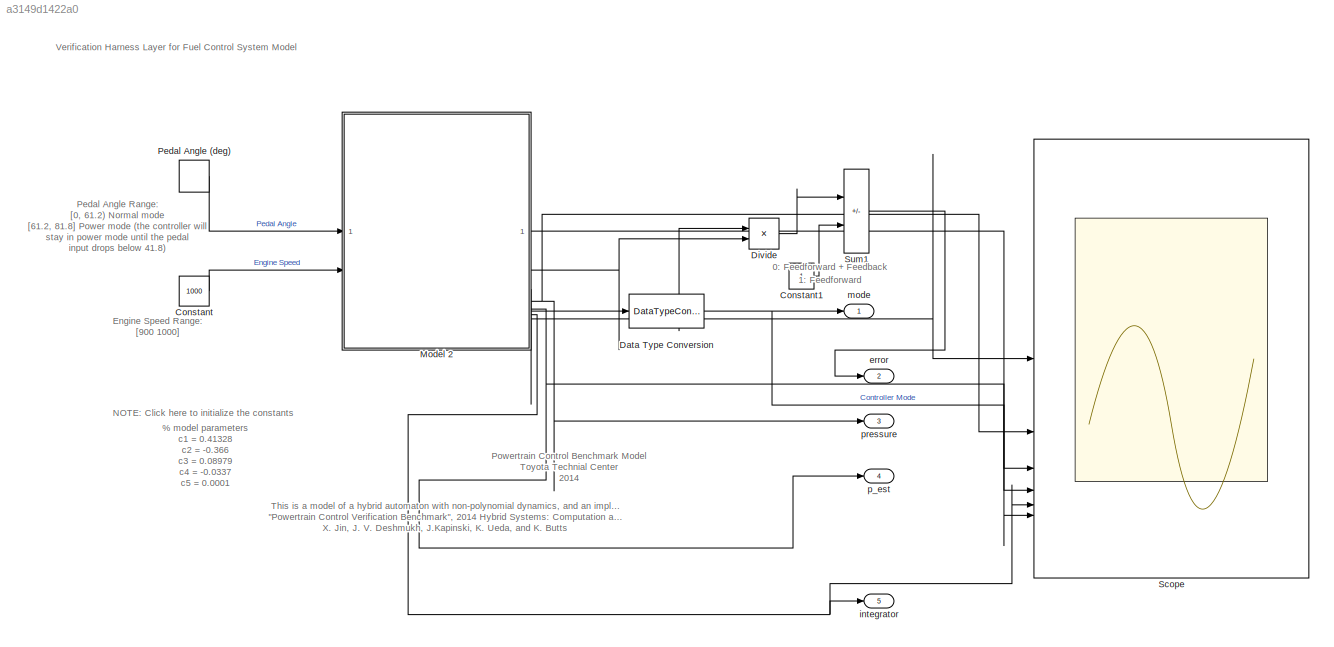
MODEL slx_a3149d1422a0
KIND model
CONFIG AbsTol = auto
CONFIG EnableMultiTasking = on
CONFIG FixedStep = auto
CONFIG MaxStep = auto
CONFIG MinStep = auto
CONFIG RelTol = 1e-3
CONFIG SampleTimeConstraint = Unconstrained
CONFIG SolverName = ode15s
CONFIG StartTime = 0.0
CONFIG StopTime = simTime
BLOCK [Constant] Constant
  Value = 1000
BLOCK [Constant] Constant1
BLOCK [DataTypeConversion] Data Type Conversion
  RndMeth = Floor
  SaturateOnIntegerOverflow = off
BLOCK [Product] Divide
  Inputs = */
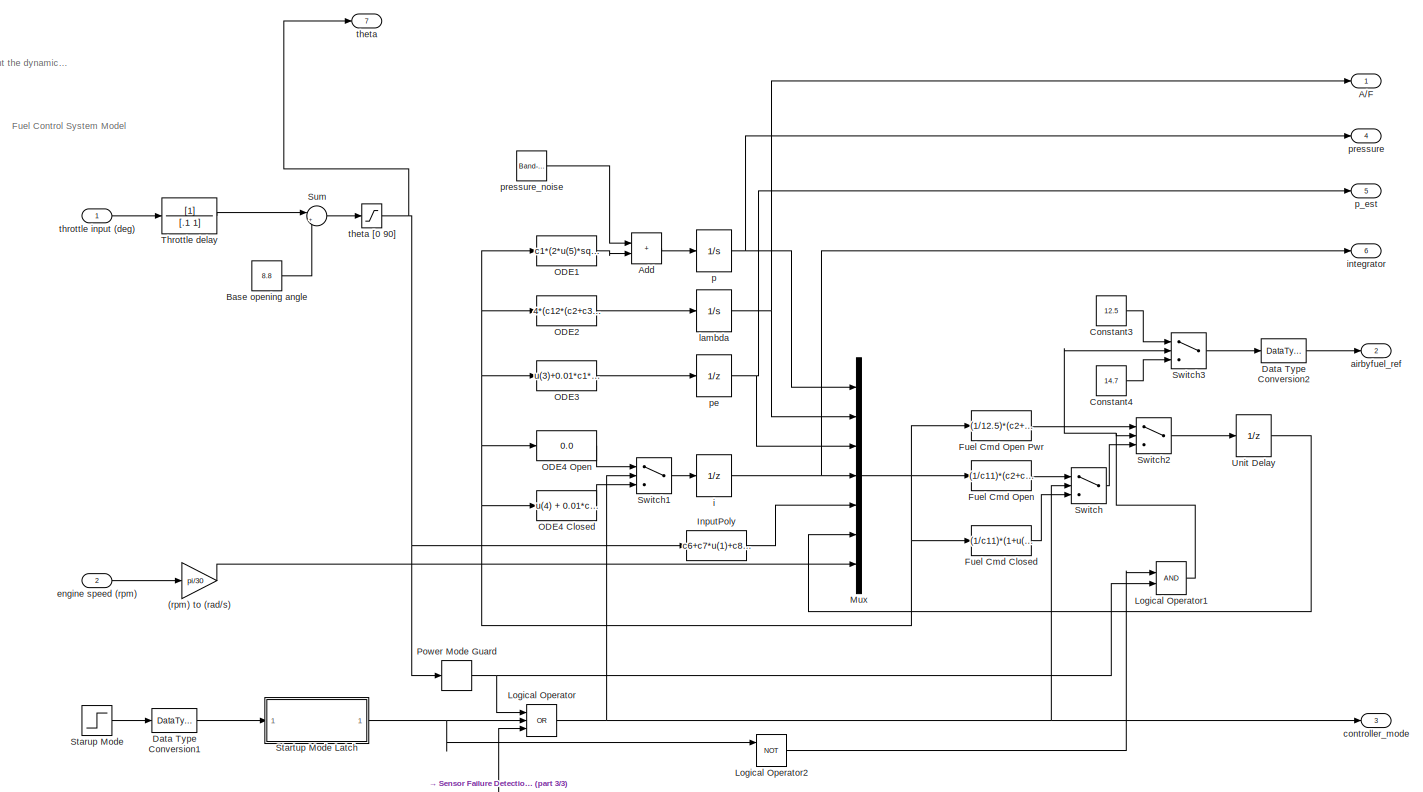
[diagram: Model 2 - part 1/3, most of the canvas]
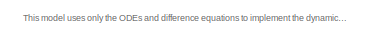
[diagram: Model 2 - part 2/3, top left region]
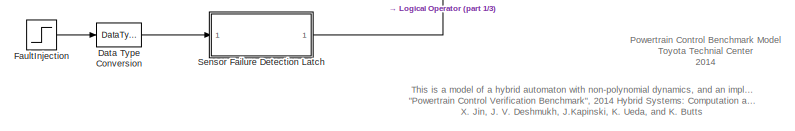
[diagram: Model 2 - part 3/3, bottom center region]
BLOCK [SubSystem] Model 2
  Priority = 1
  TreatAsAtomicUnit = on
BLOCK [Gain] Model 2/(rpm) to (rad//s)
  Gain = pi/30
BLOCK [Outport] Model 2/A//F
BLOCK [Sum] Model 2/Add
  IconShape = rectangular
BLOCK [Constant] Model 2/Base opening angle
  Value = 8.8
BLOCK [Constant] Model 2/Constant3
  Value = 12.5
BLOCK [Constant] Model 2/Constant4
  Value = 14.7
BLOCK [DataTypeConversion] Model 2/Data Type Conversion
  OutDataTypeStr = boolean
  RndMeth = Floor
  SaturateOnIntegerOverflow = off
BLOCK [DataTypeConversion] Model 2/Data Type Conversion1
  OutDataTypeStr = boolean
  RndMeth = Floor
  SaturateOnIntegerOverflow = off
BLOCK [DataTypeConversion] Model 2/Data Type Conversion2
  OutDataTypeStr = double
  RndMeth = Floor
  SaturateOnIntegerOverflow = off
BLOCK [Step] Model 2/FaultInjection
  AttributesFormatString = 1: Failure\n0: Normal
  SampleTime = 0
  Time = fault_time
BLOCK [Fcn] Model 2/Fuel Cmd Closed
  Expr = (1/c11)*(1+u(4)+c13*(c24*u(2)-c11))*(c2+c3*u(7)*u(3)+c4*u(7)*u(3)^2+c5*u(3)*u(7)^2)
BLOCK [Fcn] Model 2/Fuel Cmd Open
  Expr = (1/c11)*(c2+c3*u(7)*u(3)+c4*u(7)*u(3)^2+c5*u(3)*u(7)^2)
BLOCK [Fcn] Model 2/Fuel Cmd Open Pwr
  Expr = (1/12.5)*(c2+c3*u(7)*u(3)+c4*u(7)*u(3)^2+c5*u(3)*u(7)^2)
BLOCK [Fcn] Model 2/InputPoly
  Expr = c6+c7*u(1)+c8*u(1)^2+c9*u(1)^3
BLOCK [Logic] Model 2/Logical Operator
  AllPortsSameDT = off
  Inputs = 3
  Operator = OR
  OutDataTypeStr = boolean
BLOCK [Logic] Model 2/Logical Operator1
  AllPortsSameDT = off
  OutDataTypeStr = boolean
BLOCK [Logic] Model 2/Logical Operator2
  AllPortsSameDT = off
  Inputs = 3
  Operator = NOT
  OutDataTypeStr = boolean
BLOCK [Mux] Model 2/Mux
  DisplayOption = bar
  Inputs = 7
BLOCK [Fcn] Model 2/ODE1
  Expr = c1*(2*u(5)*sqrt((u(1)/c10)-(u(1)/c10)^2) - c12*(c2+c3*u(7)*u(1)+c4*u(7)*u(1)^2+c5*u(1)*u(7)^2))
BLOCK [Fcn] Model 2/ODE2
  Expr = 4*(c12*(c2+c3*u(7)*u(1)+c4*u(7)*u(1)^2+c5*u(1)*u(7)^2)/(c25*u(6))-u(2))
BLOCK [Fcn] Model 2/ODE3
  Expr = u(3)+0.01*c1*(2*c23*u(5)*sqrt((u(1)/c10)-(u(1)/c10)^2) - (c2+c3*u(7)*u(3)+c4*u(7)*u(3)^2+c5*u(3)*u(7)^2))
BLOCK [Fcn] Model 2/ODE4 Closed
  Expr = u(4) + 0.01*c14*(c24*u(2)-c11)
BLOCK [Fcn] Model 2/ODE4 Open
  Expr = 0.0
BLOCK [Relay] Model 2/Power Mode Guard
  OffSwitchValue = 50
  OnSwitchValue = 70
  SampleTime = 0.01
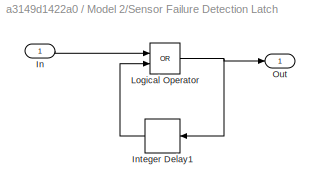
BLOCK [SubSystem] Model 2/Sensor Failure Detection Latch
  TreatAsAtomicUnit = on
BLOCK [Inport] Model 2/Sensor Failure Detection Latch/In
BLOCK [Delay] Model 2/Sensor Failure Detection Latch/Integer Delay1
  DelayLength = 1
  InputPortMap = u0
  SampleTime = 0.01
  UserDataPersistent = on
BLOCK [Logic] Model 2/Sensor Failure Detection Latch/Logical Operator
  AllPortsSameDT = off
  Operator = OR
BLOCK [Outport] Model 2/Sensor Failure Detection Latch/Out
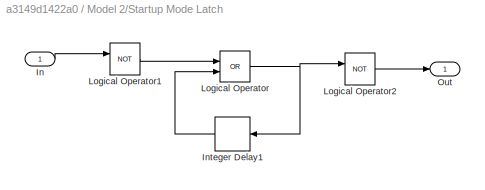
BLOCK [SubSystem] Model 2/Startup Mode Latch
  TreatAsAtomicUnit = on
BLOCK [Inport] Model 2/Startup Mode Latch/In
BLOCK [Delay] Model 2/Startup Mode Latch/Integer Delay1
  DelayLength = 1
  InputPortMap = u0
  SampleTime = 0.01
  UserDataPersistent = on
BLOCK [Logic] Model 2/Startup Mode Latch/Logical Operator
  AllPortsSameDT = off
  Operator = OR
BLOCK [Logic] Model 2/Startup Mode Latch/Logical Operator1
  AllPortsSameDT = off
  Operator = NOT
BLOCK [Logic] Model 2/Startup Mode Latch/Logical Operator2
  AllPortsSameDT = off
  Operator = NOT
BLOCK [Outport] Model 2/Startup Mode Latch/Out
BLOCK [Step] Model 2/Starup Mode
  After = 0
  Before = 1
  SampleTime = 0
  Time = 10
BLOCK [Sum] Model 2/Sum
  Inputs = |++
BLOCK [Switch] Model 2/Switch
  Criteria = u2 ~= 0
  InputSameDT = off
  SaturateOnIntegerOverflow = off
BLOCK [Switch] Model 2/Switch1
  Criteria = u2 ~= 0
  InputSameDT = off
  SaturateOnIntegerOverflow = off
BLOCK [Switch] Model 2/Switch2
  Criteria = u2 ~= 0
  InputSameDT = off
  SaturateOnIntegerOverflow = off
BLOCK [Switch] Model 2/Switch3
  Criteria = u2 ~= 0
  InputSameDT = off
  SaturateOnIntegerOverflow = off
BLOCK [TransferFcn] Model 2/Throttle  delay
  Denominator = [.1 1]
BLOCK [UnitDelay] Model 2/Unit Delay
  HasFrameUpgradeWarning = on
  InitialCondition = 0.6537
  SampleTime = 0.01
BLOCK [Outport] Model 2/airbyfuel_ref
  Port = 2
BLOCK [Outport] Model 2/controller_mode
  Port = 3
BLOCK [Inport] Model 2/engine speed (rpm)
  AttributesFormatString = %<Description>
  Description = [900,1100]
  Port = 2
BLOCK [UnitDelay] Model 2/i
  HasFrameUpgradeWarning = on
  InitialCondition = i_init
  SampleTime = 0.01
  UserDataPersistent = on
BLOCK [Outport] Model 2/integrator
  Port = 6
BLOCK [Integrator] Model 2/lambda
  InitialCondition = 14.7
BLOCK [Integrator] Model 2/p
  InitialCondition = p_init
BLOCK [Outport] Model 2/p_est
  Port = 5
BLOCK [UnitDelay] Model 2/pe
  HasFrameUpgradeWarning = on
  InitialCondition = p_est_init
  SampleTime = 0.01
  UserDataPersistent = on
BLOCK [Outport] Model 2/pressure
  Port = 4
BLOCK [Reference] Model 2/pressure_noise  REF=simulink/Sources/Band-Limited
White Noise
  SourceBlock = simulink/Sources/Band-Limited\nWhite Noise
  SourceType = Band-Limited White Noise.
BLOCK [Outport] Model 2/theta
  Port = 7
BLOCK [Saturate] Model 2/theta [0 90]
  LowerLimit = 0
  NameLocation = top
  UpperLimit = 90
BLOCK [Inport] Model 2/throttle input (deg)
  AttributesFormatString = %<Description>
  Description = [0, 81.2]
BLOCK [DiscretePulseGenerator] Pedal Angle (deg)
  Amplitude = 50
  Period = 20
  PhaseDelay = 3
  PulseType = Time based
  PulseWidth = 50
BLOCK [Scope] Scope
  Floating = off
  NumInputPorts = 6
  ScopeSpecificationString = Simulink.scopes.TimeScopeBlockCfg('CurrentConfiguration', extmgr.ConfigurationSet(extmgr.Configuration('Core','General UI',true),extmgr.Configuration('Core','Source UI',true),extmgr.Configuration('Sources','WiredSimulink',true,'DataLogging',true,'DataLoggingSaveFormat','StructureWithTime'),extmgr.Configuration('Visuals','Time Domain',true,'SerializedDisplays',{struct('MinYLimReal','2.55','MaxYLimR...<+5434ch>
BLOCK [Sum] Sum1
  IconShape = rectangular
  InputSameDT = on
  Inputs = +-
  OutDataTypeStr = Inherit: Inherit via back propagation
  RndMeth = Simplest
BLOCK [Outport] error
  Port = 2
BLOCK [Outport] integrator
  Port = 5
BLOCK [Outport] mode
BLOCK [Outport] p_est
  Port = 4
BLOCK [Outport] pressure
  Port = 3
ANNOTATION (root): % model parameters c1 = 0.41328 c2 = -0.366 c3 = 0.08979 c4 = -0.0337 c5 = 0.0001 c6 = 2.821 c7 = -0.05231 c8 = 0.10299 c9 = -0.00063 c10 = 1.0 c11 = 14.7 c12 = 0.9 c13 = 0.04 c14 = 0.14 % sensors and actuator error factor c23 = 1.0 c24 = 1.0 c25 = 1.0 % simulation time simTime = 50 % engine speed en_speed = 1000 % time to start measurement for verification measureTime = 1 % time to introduce sens...<+60ch>
ANNOTATION (root): 1: Feedforward 0: Feedforward + Feedback
ANNOTATION (root): Engine Speed Range: [900 1000]
ANNOTATION (root): NOTE: Click here to initialize the constants
ANNOTATION (root): Pedal Angle Range: [0, 61.2) Normal mode [61.2, 81.8] Power mode (the controller will stay in power mode until the pedal input drops below 41.8)
ANNOTATION (root): Powertrain Control Benchmark Model Toyota Technial Center 2014
ANNOTATION (root): This is a model of a hybrid automaton with non-polynomial dynamics, and an implementation of the 2nd model that appears in "Powertrain Control Verification Benchmark", 2014 Hybrid Systems: Computation and Control, X. Jin, J. V. Deshmukh, J.Kapinski, K. Ueda, and K. Butts
ANNOTATION (root): Verification Harness Layer for Fuel Control System Model
ANNOTATION Model 2: Fuel Control System Model
ANNOTATION Model 2: Powertrain Control Benchmark Model Toyota Technial Center 2014
ANNOTATION Model 2: This is a model of a hybrid automaton with non-polynomial dynamics, and an implementation of the 2nd model that appears in "Powertrain Control Verification Benchmark", 2014 Hybrid Systems: Computation and Control, X. Jin, J. V. Deshmukh, J.Kapinski, K. Ueda, and K. Butts
ANNOTATION Model 2: This model uses only the ODEs and difference equations to implement the dynamics.
LINE Constant1:1 -> Sum1:2
LINE Constant:1 -> Model 2:2
NET Data Type Conversion:1 -> Scope:6, mode:1
LINE Divide:1 -> Sum1:1
LINE Model 2/(rpm) to (rad//s):1 -> Model 2/Mux:7
LINE Model 2/Add:1 -> Model 2/p:1
LINE Model 2/Base opening angle:1 -> Model 2/Sum:2
LINE Model 2/Constant3:1 -> Model 2/Switch3:1
LINE Model 2/Constant4:1 -> Model 2/Switch3:3
LINE Model 2/Data Type Conversion1:1 -> Model 2/Startup Mode Latch:1
LINE Model 2/Data Type Conversion2:1 -> Model 2/airbyfuel_ref:1
LINE Model 2/Data Type Conversion:1 -> Model 2/Sensor Failure Detection Latch:1
LINE Model 2/FaultInjection:1 -> Model 2/Data Type Conversion:1
LINE Model 2/Fuel Cmd Closed:1 -> Model 2/Switch:3
LINE Model 2/Fuel Cmd Open Pwr:1 -> Model 2/Switch2:1
LINE Model 2/Fuel Cmd Open:1 -> Model 2/Switch:1
LINE Model 2/InputPoly:1 -> Model 2/Mux:5
NET Model 2/Logical Operator1:1 -> Model 2/Switch2:2, Model 2/Switch3:2
LINE Model 2/Logical Operator2:1 -> Model 2/Logical Operator1:1
NET Model 2/Logical Operator:1 -> Model 2/Switch1:2, Model 2/Switch:2, Model 2/controller_mode:1
NET Model 2/Mux:1 -> Model 2/Fuel Cmd Closed:1, Model 2/Fuel Cmd Open Pwr:1, Model 2/Fuel Cmd Open:1, Model 2/ODE1:1, Model 2/ODE2:1, Model 2/ODE3:1, Model 2/ODE4 Closed:1, Model 2/ODE4 Open:1
LINE Model 2/ODE1:1 -> Model 2/Add:2
LINE Model 2/ODE2:1 -> Model 2/lambda:1
LINE Model 2/ODE3:1 -> Model 2/pe:1
LINE Model 2/ODE4 Closed:1 -> Model 2/Switch1:3
LINE Model 2/ODE4 Open:1 -> Model 2/Switch1:1
NET Model 2/Power Mode Guard:1 -> Model 2/Logical Operator1:2, Model 2/Logical Operator:1
LINE Model 2/Sensor Failure Detection Latch/In:1 -> Model 2/Sensor Failure Detection Latch/Logical Operator:1
LINE Model 2/Sensor Failure Detection Latch/Integer Delay1:1 -> Model 2/Sensor Failure Detection Latch/Logical Operator:2
NET Model 2/Sensor Failure Detection Latch/Logical Operator:1 -> Model 2/Sensor Failure Detection Latch/Integer Delay1:1, Model 2/Sensor Failure Detection Latch/Out:1
LINE Model 2/Sensor Failure Detection Latch:1 -> Model 2/Logical Operator:3
LINE Model 2/Startup Mode Latch/In:1 -> Model 2/Startup Mode Latch/Logical Operator1:1
LINE Model 2/Startup Mode Latch/Integer Delay1:1 -> Model 2/Startup Mode Latch/Logical Operator:2
LINE Model 2/Startup Mode Latch/Logical Operator1:1 -> Model 2/Startup Mode Latch/Logical Operator:1
LINE Model 2/Startup Mode Latch/Logical Operator2:1 -> Model 2/Startup Mode Latch/Out:1
NET Model 2/Startup Mode Latch/Logical Operator:1 -> Model 2/Startup Mode Latch/Integer Delay1:1, Model 2/Startup Mode Latch/Logical Operator2:1
NET Model 2/Startup Mode Latch:1 -> Model 2/Logical Operator2:1, Model 2/Logical Operator:2
LINE Model 2/Starup Mode:1 -> Model 2/Data Type Conversion1:1
LINE Model 2/Sum:1 -> Model 2/theta [0 90]:1
LINE Model 2/Switch1:1 -> Model 2/i:1
LINE Model 2/Switch2:1 -> Model 2/Unit Delay:1
LINE Model 2/Switch3:1 -> Model 2/Data Type Conversion2:1
LINE Model 2/Switch:1 -> Model 2/Switch2:3
LINE Model 2/Throttle  delay:1 -> Model 2/Sum:1
LINE Model 2/Unit Delay:1 -> Model 2/Mux:6
LINE Model 2/engine speed (rpm):1 -> Model 2/(rpm) to (rad//s):1
NET Model 2/i:1 -> Model 2/Mux:4, Model 2/integrator:1
NET Model 2/lambda:1 -> Model 2/A//F:1, Model 2/Mux:2
NET Model 2/p:1 -> Model 2/Mux:1, Model 2/pressure:1
NET Model 2/pe:1 -> Model 2/Mux:3, Model 2/p_est:1
LINE Model 2/pressure_noise:1 -> Model 2/Add:1
NET Model 2/theta [0 90]:1 -> Model 2/InputPoly:1, Model 2/Power Mode Guard:1, Model 2/theta:1
LINE Model 2/throttle input (deg):1 -> Model 2/Throttle  delay:1
NET Model 2:1 -> Divide:1, Scope:3
LINE Model 2:2 -> Divide:2
LINE Model 2:3 -> Data Type Conversion:1
NET Model 2:4 -> Scope:2, pressure:1
NET Model 2:5 -> Scope:4, p_est:1
NET Model 2:6 -> Scope:5, integrator:1
LINE Model 2:7 -> Scope:1
LINE Pedal Angle (deg):1 -> Model 2:1
LINE Sum1:1 -> error:1
note: NET lines group one-source signal fan-out (src -> all destinations, sorted); 1:1 wires keep LINE
